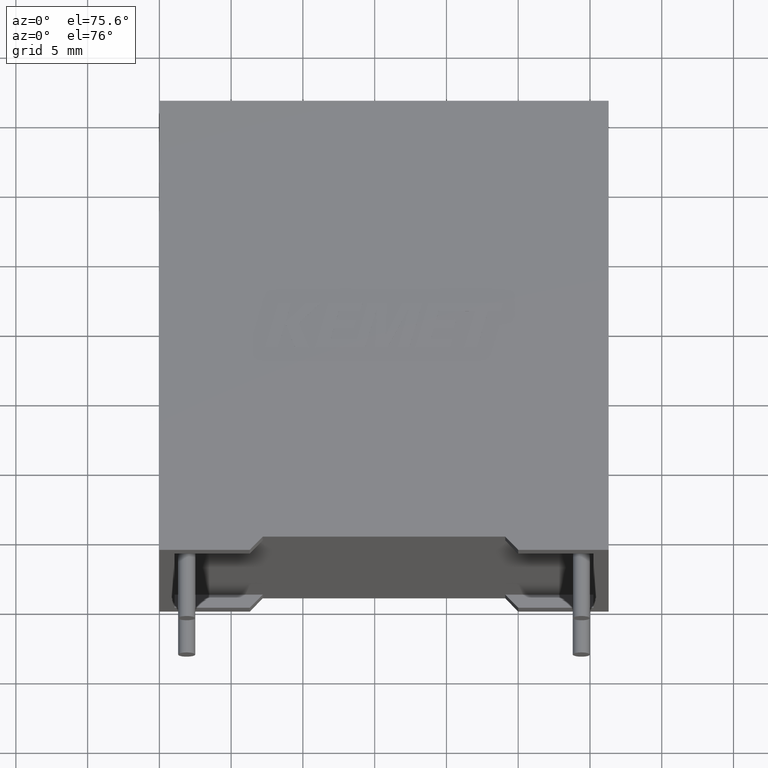
[diagram: clean part render]
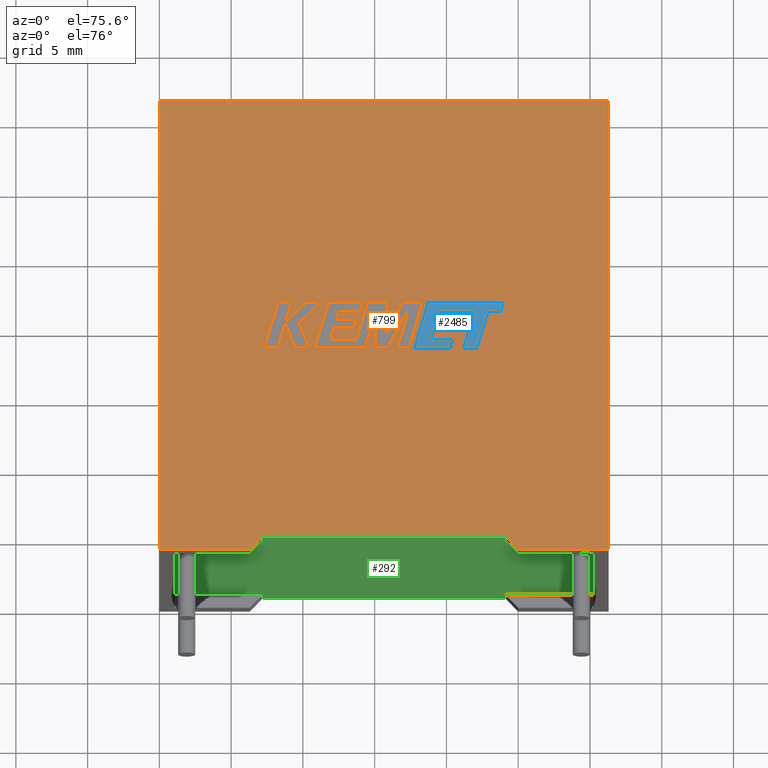
[diagram: same view with three faces highlighted in distinct colors, each labeled with its STEP entity id]
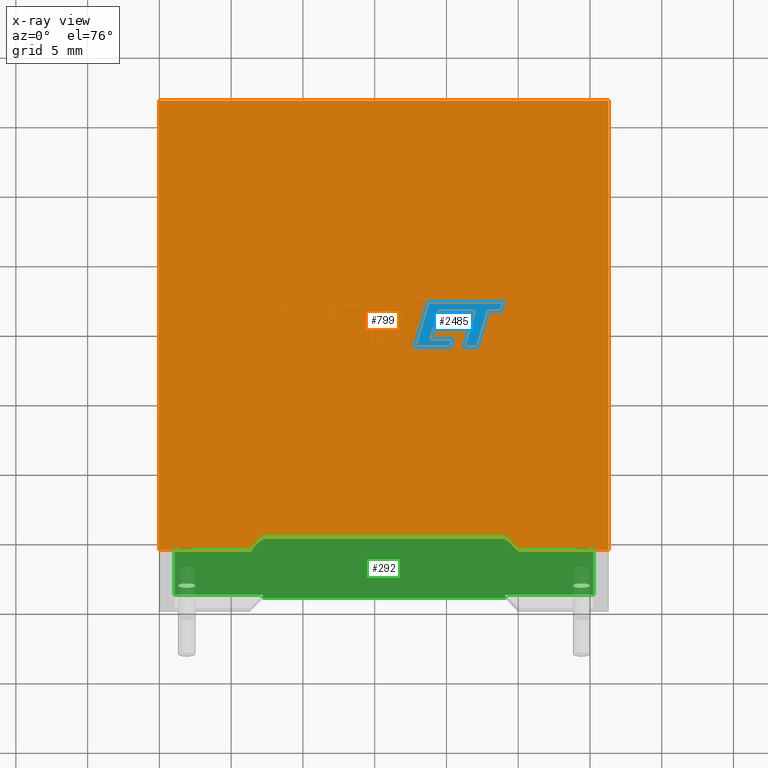
[diagram: x-ray of the same camera — body ghosted, the three highlighted faces saturated]
A machine part, auxiliary view with three faces highlighted in distinct colors.
The next image is the same camera in x-ray (body ghosted, the three faces saturated) — at least one of them is partly hidden behind the body in this view.
Their STEP definitions:

[orange] entity #799 — the highlighted planar face has unit normal (0, 0, -1).
#4 = VERTEX_POINT ( 'NONE', #3016 ) ;
#35 = ORIENTED_EDGE ( 'NONE', *, *, #3061, .F. ) ;
#46 = VECTOR ( 'NONE', #430, 1000.000000000000000 ) ;
#55 = VECTOR ( 'NONE', #1539, 1000.000000000000000 ) ;
#92 = LINE ( 'NONE', #1996, #1920 ) ;
#164 = EDGE_CURVE ( 'NONE', #1749, #1561, #2342, .T. ) ;
#175 = CARTESIAN_POINT ( 'NONE',  ( 31.30000000000000071, 0.000000000000000000, 17.30000000000000071 ) ) ;
#206 = CARTESIAN_POINT ( 'NONE',  ( 0.000000000000000000, 0.000000000000000000, 17.30000000000000071 ) ) ;
#317 = DIRECTION ( 'NONE',  ( 0.000000000000000000, 0.000000000000000000, -1.000000000000000000 ) ) ;
#391 = EDGE_CURVE ( 'NONE', #884, #1222, #2526, .T. ) ;
#430 = DIRECTION ( 'NONE',  ( -0.000000000000000000, -1.000000000000000000, -0.000000000000000000 ) ) ;
#433 = CARTESIAN_POINT ( 'NONE',  ( 6.300000000000000711, 1.543054966925665273E-15, 17.30000000000000071 ) ) ;
#443 = CARTESIAN_POINT ( 'NONE',  ( 0.000000000000000000, 32.29999999999999716, 17.30000000000000071 ) ) ;
#468 = CARTESIAN_POINT ( 'NONE',  ( 24.10000000000000142, 0.9496200000000032393, 17.30000000000000071 ) ) ;
#474 = EDGE_CURVE ( 'NONE', #776, #884, #1594, .T. ) ;
#727 = ORIENTED_EDGE ( 'NONE', *, *, #3017, .F. ) ;
#732 = PLANE ( 'NONE',  #3143 ) ;
#776 = VERTEX_POINT ( 'NONE', #175 ) ;
#799 = ADVANCED_FACE ( 'NONE', ( #1505 ), #732, .F. ) ;
#821 = CARTESIAN_POINT ( 'NONE',  ( 0.000000000000000000, 0.000000000000000000, 17.30000000000000071 ) ) ;
#866 = EDGE_LOOP ( 'NONE', ( #35, #2398, #2657, #2430, #2443, #2317, #2940, #727 ) ) ;
#884 = VERTEX_POINT ( 'NONE', #1276 ) ;
#910 = CARTESIAN_POINT ( 'NONE',  ( 15.65000000000000391, 0.9496200000000043495, 17.30000000000000071 ) ) ;
#942 = LINE ( 'NONE', #206, #46 ) ;
#987 = EDGE_CURVE ( 'NONE', #4, #2376, #1717, .T. ) ;
#1070 = DIRECTION ( 'NONE',  ( 1.000000000000000000, 0.000000000000000000, 0.000000000000000000 ) ) ;
#1078 = DIRECTION ( 'NONE',  ( 0.000000000000000000, 1.000000000000000000, 0.000000000000000000 ) ) ;
#1191 = EDGE_CURVE ( 'NONE', #1222, #1749, #942, .T. ) ;
#1222 = VERTEX_POINT ( 'NONE', #443 ) ;
#1276 = CARTESIAN_POINT ( 'NONE',  ( 31.30000000000000071, 32.29999999999999716, 17.30000000000000071 ) ) ;
#1278 = LINE ( 'NONE', #2034, #55 ) ;
#1356 = CARTESIAN_POINT ( 'NONE',  ( 31.30000000000000071, 0.000000000000000000, 17.30000000000000071 ) ) ;
#1439 = VECTOR ( 'NONE', #2765, 1000.000000000000000 ) ;
#1505 = FACE_OUTER_BOUND ( 'NONE', #866, .T. ) ;
#1539 = DIRECTION ( 'NONE',  ( -0.6878896433354887430, -0.7258152923380535304, 0.000000000000000000 ) ) ;
#1561 = VERTEX_POINT ( 'NONE', #433 ) ;
#1594 = LINE ( 'NONE', #1356, #2469 ) ;
#1632 = DIRECTION ( 'NONE',  ( -1.000000000000000000, -1.283079494065685201E-16, 0.000000000000000000 ) ) ;
#1680 = CARTESIAN_POINT ( 'NONE',  ( 25.00000000000000000, 1.543054966925665273E-15, 17.30000000000000071 ) ) ;
#1717 = LINE ( 'NONE', #468, #2546 ) ;
#1749 = VERTEX_POINT ( 'NONE', #821 ) ;
#1855 = VECTOR ( 'NONE', #1632, 1000.000000000000000 ) ;
#1887 = CARTESIAN_POINT ( 'NONE',  ( 0.000000000000000000, 0.000000000000000000, 17.30000000000000071 ) ) ;
#1920 = VECTOR ( 'NONE', #1070, 1000.000000000000000 ) ;
#1996 = CARTESIAN_POINT ( 'NONE',  ( 0.000000000000000000, 0.000000000000000000, 17.30000000000000071 ) ) ;
#2031 = EDGE_CURVE ( 'NONE', #2376, #776, #92, .T. ) ;
#2034 = CARTESIAN_POINT ( 'NONE',  ( 7.200000000000001066, 0.9496200000000032393, 17.30000000000000071 ) ) ;
#2138 = LINE ( 'NONE', #910, #1855 ) ;
#2213 = DIRECTION ( 'NONE',  ( -1.000000000000000000, 0.000000000000000000, -0.000000000000000000 ) ) ;
#2250 = CARTESIAN_POINT ( 'NONE',  ( 0.000000000000000000, 0.000000000000000000, 17.30000000000000071 ) ) ;
#2271 = VERTEX_POINT ( 'NONE', #2689 ) ;
#2317 = ORIENTED_EDGE ( 'NONE', *, *, #1191, .T. ) ;
#2342 = LINE ( 'NONE', #1887, #2902 ) ;
#2376 = VERTEX_POINT ( 'NONE', #1680 ) ;
#2398 = ORIENTED_EDGE ( 'NONE', *, *, #987, .T. ) ;
#2430 = ORIENTED_EDGE ( 'NONE', *, *, #474, .T. ) ;
#2443 = ORIENTED_EDGE ( 'NONE', *, *, #391, .T. ) ;
#2469 = VECTOR ( 'NONE', #1078, 1000.000000000000000 ) ;
#2526 = LINE ( 'NONE', #2994, #1439 ) ;
#2546 = VECTOR ( 'NONE', #3110, 1000.000000000000000 ) ;
#2608 = DIRECTION ( 'NONE',  ( 1.000000000000000000, 0.000000000000000000, 0.000000000000000000 ) ) ;
#2657 = ORIENTED_EDGE ( 'NONE', *, *, #2031, .T. ) ;
#2689 = CARTESIAN_POINT ( 'NONE',  ( 7.200000000000001066, 0.9496200000000032393, 17.30000000000000071 ) ) ;
#2765 = DIRECTION ( 'NONE',  ( -1.000000000000000000, -0.000000000000000000, -0.000000000000000000 ) ) ;
#2902 = VECTOR ( 'NONE', #2608, 1000.000000000000000 ) ;
#2940 = ORIENTED_EDGE ( 'NONE', *, *, #164, .T. ) ;
#2994 = CARTESIAN_POINT ( 'NONE',  ( 0.000000000000000000, 32.29999999999999716, 17.30000000000000071 ) ) ;
#3016 = CARTESIAN_POINT ( 'NONE',  ( 24.10000000000000142, 0.9496200000000032393, 17.30000000000000071 ) ) ;
#3017 = EDGE_CURVE ( 'NONE', #2271, #1561, #1278, .T. ) ;
#3061 = EDGE_CURVE ( 'NONE', #4, #2271, #2138, .T. ) ;
#3110 = DIRECTION ( 'NONE',  ( 0.6878896433354887430, -0.7258152923380535304, 0.000000000000000000 ) ) ;
#3143 = AXIS2_PLACEMENT_3D ( 'NONE', #2250, #317, #2213 ) ;

[blue] entity #2485 — the highlighted planar face has unit normal (0, 0, 1).
#18 = VERTEX_POINT ( 'NONE', #1532 ) ;
#31 = ORIENTED_EDGE ( 'NONE', *, *, #2266, .T. ) ;
#42 = DIRECTION ( 'NONE',  ( 0.2745159998572473392, 0.9615825319869198973, 0.000000000000000000 ) ) ;
#86 = ORIENTED_EDGE ( 'NONE', *, *, #1375, .T. ) ;
#89 = CARTESIAN_POINT ( 'NONE',  ( 20.25817711236862451, 14.52530999999991046, 17.30499999999999972 ) ) ;
#91 = DIRECTION ( 'NONE',  ( 1.000000000000000000, 0.000000000000000000, 0.000000000000000000 ) ) ;
#97 = VECTOR ( 'NONE', #2005, 1000.000000000000000 ) ;
#106 = AXIS2_PLACEMENT_3D ( 'NONE', #2556, #2538, #2761 ) ;
#162 = VECTOR ( 'NONE', #1273, 1000.000000000000000 ) ;
#176 = ORIENTED_EDGE ( 'NONE', *, *, #2781, .T. ) ;
#187 = EDGE_CURVE ( 'NONE', #18, #1409, #421, .T. ) ;
#194 = VERTEX_POINT ( 'NONE', #2593 ) ;
#221 = EDGE_CURVE ( 'NONE', #1409, #2924, #1903, .T. ) ;
#279 = LINE ( 'NONE', #2232, #2330 ) ;
#282 = CARTESIAN_POINT ( 'NONE',  ( 19.13125819028597263, 15.95531307450896996, 17.30499999999999972 ) ) ;
#287 = LINE ( 'NONE', #2004, #2255 ) ;
#288 = CARTESIAN_POINT ( 'NONE',  ( 17.79592803777410381, 14.52530999999991046, 17.30499999999999972 ) ) ;
#308 = EDGE_CURVE ( 'NONE', #2924, #1832, #1447, .T. ) ;
#320 = FACE_OUTER_BOUND ( 'NONE', #1213, .T. ) ;
#335 = PLANE ( 'NONE',  #106 ) ;
#342 = LINE ( 'NONE', #1251, #2297 ) ;
#348 = LINE ( 'NONE', #2499, #1437 ) ;
#357 = EDGE_CURVE ( 'NONE', #1832, #1955, #287, .T. ) ;
#359 = ORIENTED_EDGE ( 'NONE', *, *, #2930, .T. ) ;
#403 = EDGE_CURVE ( 'NONE', #1157, #1150, #1265, .T. ) ;
#407 = ORIENTED_EDGE ( 'NONE', *, *, #187, .T. ) ;
#417 = CARTESIAN_POINT ( 'NONE',  ( 22.89187593538664345, 17.15503521596052039, 17.30499999999999972 ) ) ;
#421 = LINE ( 'NONE', #861, #2707 ) ;
#499 = ORIENTED_EDGE ( 'NONE', *, *, #2333, .T. ) ;
#511 = DIRECTION ( 'NONE',  ( 0.9999999968487351953, -7.938847107242143349E-05, 0.000000000000000000 ) ) ;
#514 = VECTOR ( 'NONE', #689, 1000.000000000000000 ) ;
#525 = EDGE_CURVE ( 'NONE', #1150, #2913, #2070, .T. ) ;
#570 = DIRECTION ( 'NONE',  ( -0.2763173343569894636, -0.9610664548998928414, 0.000000000000000000 ) ) ;
#594 = CARTESIAN_POINT ( 'NONE',  ( 21.96373645807492636, 17.15503521596862058, 17.30499999999999972 ) ) ;
#616 = VERTEX_POINT ( 'NONE', #89 ) ;
#635 = CARTESIAN_POINT ( 'NONE',  ( 23.78415243502824339, 17.15496437949321873, 17.30499999999999972 ) ) ;
#689 = DIRECTION ( 'NONE',  ( 0.2746918797667528001, 0.9615323037684214702, 0.000000000000000000 ) ) ;
#699 = DIRECTION ( 'NONE',  ( 0.9999960426590096541, -0.002813301676026589131, 0.000000000000000000 ) ) ;
#703 = CARTESIAN_POINT ( 'NONE',  ( 19.30314394546934764, 16.55767622947713136, 17.30499999999999972 ) ) ;
#723 = DIRECTION ( 'NONE',  ( -1.000000000000000000, -9.064081856670373148E-16, 0.000000000000000000 ) ) ;
#737 = DIRECTION ( 'NONE',  ( 0.2793947940814967557, 0.9601763114346021366, 0.000000000000000000 ) ) ;
#758 = ORIENTED_EDGE ( 'NONE', *, *, #3072, .T. ) ;
#762 = VECTOR ( 'NONE', #3120, 1000.000000000000114 ) ;
#779 = CARTESIAN_POINT ( 'NONE',  ( 20.43414547628752942, 15.14545033960687448, 17.30499999999999972 ) ) ;
#785 = ORIENTED_EDGE ( 'NONE', *, *, #525, .T. ) ;
#861 = CARTESIAN_POINT ( 'NONE',  ( 20.70171489641166573, 16.55767622947713136, 17.30499999999999972 ) ) ;
#911 = CARTESIAN_POINT ( 'NONE',  ( 22.13601858303819725, 14.52530999999991046, 17.30499999999999972 ) ) ;
#923 = VECTOR ( 'NONE', #2554, 1000.000000000000114 ) ;
#927 = LINE ( 'NONE', #2334, #514 ) ;
#937 = CARTESIAN_POINT ( 'NONE',  ( 19.47952849765790617, 17.16384453433486357, 17.30499999999999972 ) ) ;
#960 = LINE ( 'NONE', #1751, #3003 ) ;
#977 = ORIENTED_EDGE ( 'NONE', *, *, #308, .T. ) ;
#1041 = EDGE_CURVE ( 'NONE', #1542, #616, #1985, .T. ) ;
#1060 = CARTESIAN_POINT ( 'NONE',  ( 22.89187593538664345, 17.15503521596052039, 17.30499999999999972 ) ) ;
#1101 = EDGE_CURVE ( 'NONE', #1955, #1590, #342, .T. ) ;
#1109 = VECTOR ( 'NONE', #2779, 999.9999999999998863 ) ;
#1150 = VERTEX_POINT ( 'NONE', #1639 ) ;
#1157 = VERTEX_POINT ( 'NONE', #417 ) ;
#1165 = EDGE_CURVE ( 'NONE', #616, #2804, #2877, .T. ) ;
#1204 = CARTESIAN_POINT ( 'NONE',  ( 20.25817711236862451, 14.52530999999991046, 17.30499999999999972 ) ) ;
#1213 = EDGE_LOOP ( 'NONE', ( #977, #2196, #3092, #359, #499, #2735, #785, #1287, #86, #1628, #2146, #176, #1697, #31, #758, #407, #2081 ) ) ;
#1251 = CARTESIAN_POINT ( 'NONE',  ( 21.96373645807492636, 17.15503521596862058, 17.30499999999999972 ) ) ;
#1265 = LINE ( 'NONE', #1060, #1857 ) ;
#1273 = DIRECTION ( 'NONE',  ( -1.000000000000000000, 0.000000000000000000, 0.000000000000000000 ) ) ;
#1287 = ORIENTED_EDGE ( 'NONE', *, *, #2846, .T. ) ;
#1358 = VERTEX_POINT ( 'NONE', #911 ) ;
#1375 = EDGE_CURVE ( 'NONE', #194, #1542, #1399, .T. ) ;
#1399 = LINE ( 'NONE', #3049, #923 ) ;
#1409 = VERTEX_POINT ( 'NONE', #703 ) ;
#1437 = VECTOR ( 'NONE', #91, 1000.000000000000000 ) ;
#1447 = LINE ( 'NONE', #937, #2564 ) ;
#1473 = LINE ( 'NONE', #282, #2221 ) ;
#1530 = VERTEX_POINT ( 'NONE', #2636 ) ;
#1532 = CARTESIAN_POINT ( 'NONE',  ( 20.70171489641166573, 16.55767622947713136, 17.30499999999999972 ) ) ;
#1542 = VERTEX_POINT ( 'NONE', #2102 ) ;
#1590 = VERTEX_POINT ( 'NONE', #2648 ) ;
#1628 = ORIENTED_EDGE ( 'NONE', *, *, #1041, .T. ) ;
#1639 = CARTESIAN_POINT ( 'NONE',  ( 23.78415243502824339, 17.15496437949321873, 17.30499999999999972 ) ) ;
#1673 = VERTEX_POINT ( 'NONE', #1684 ) ;
#1684 = CARTESIAN_POINT ( 'NONE',  ( 18.90005569749589398, 15.14545033960687448, 17.30499999999999972 ) ) ;
#1697 = ORIENTED_EDGE ( 'NONE', *, *, #2010, .T. ) ;
#1751 = CARTESIAN_POINT ( 'NONE',  ( 23.96500748091568056, 17.78428215128295165, 17.30499999999999972 ) ) ;
#1768 = DIRECTION ( 'NONE',  ( 0.9999891854650021505, -0.004650693823667352220, 0.000000000000000000 ) ) ;
#1832 = VERTEX_POINT ( 'NONE', #2806 ) ;
#1856 = DIRECTION ( 'NONE',  ( -1.000000000000000000, 0.000000000000000000, 0.000000000000000000 ) ) ;
#1857 = VECTOR ( 'NONE', #511, 1000.000000000000114 ) ;
#1903 = LINE ( 'NONE', #1936, #3112 ) ;
#1933 = CARTESIAN_POINT ( 'NONE',  ( 19.13125819028597263, 15.95531307450896996, 17.30499999999999972 ) ) ;
#1936 = CARTESIAN_POINT ( 'NONE',  ( 19.30314394546934764, 16.55767622947713136, 17.30499999999999972 ) ) ;
#1955 = VERTEX_POINT ( 'NONE', #594 ) ;
#1985 = LINE ( 'NONE', #288, #97 ) ;
#1993 = LINE ( 'NONE', #2704, #162 ) ;
#2004 = CARTESIAN_POINT ( 'NONE',  ( 20.97297055549159595, 17.15964301466366848, 17.30499999999999972 ) ) ;
#2005 = DIRECTION ( 'NONE',  ( 1.000000000000000000, 0.000000000000000000, 0.000000000000000000 ) ) ;
#2010 = EDGE_CURVE ( 'NONE', #1673, #2388, #279, .T. ) ;
#2070 = LINE ( 'NONE', #635, #1109 ) ;
#2081 = ORIENTED_EDGE ( 'NONE', *, *, #221, .T. ) ;
#2102 = CARTESIAN_POINT ( 'NONE',  ( 17.79592803777410381, 14.52530999999991046, 17.30499999999999972 ) ) ;
#2126 = VECTOR ( 'NONE', #2156, 1000.000000000000114 ) ;
#2146 = ORIENTED_EDGE ( 'NONE', *, *, #1165, .T. ) ;
#2156 = DIRECTION ( 'NONE',  ( 0.2762437428917328130, 0.9610876102172819513, 0.000000000000000000 ) ) ;
#2196 = ORIENTED_EDGE ( 'NONE', *, *, #357, .T. ) ;
#2202 = DIRECTION ( 'NONE',  ( 1.000000000000000000, 0.000000000000000000, 0.000000000000000000 ) ) ;
#2221 = VECTOR ( 'NONE', #2202, 1000.000000000000000 ) ;
#2232 = CARTESIAN_POINT ( 'NONE',  ( 18.90005569749589398, 15.14545033960687448, 17.30499999999999972 ) ) ;
#2251 = CARTESIAN_POINT ( 'NONE',  ( 19.47952849765790617, 17.16384453433486357, 17.30499999999999972 ) ) ;
#2255 = VECTOR ( 'NONE', #1768, 1000.000000000000114 ) ;
#2266 = EDGE_CURVE ( 'NONE', #2388, #1530, #1473, .T. ) ;
#2268 = CARTESIAN_POINT ( 'NONE',  ( 23.96500748091568056, 17.78428215128295165, 17.30499999999999972 ) ) ;
#2297 = VECTOR ( 'NONE', #570, 1000.000000000000114 ) ;
#2330 = VECTOR ( 'NONE', #42, 999.9999999999998863 ) ;
#2333 = EDGE_CURVE ( 'NONE', #1358, #1157, #2708, .T. ) ;
#2334 = CARTESIAN_POINT ( 'NONE',  ( 20.52963095633815271, 15.95531307450896996, 17.30499999999999972 ) ) ;
#2388 = VERTEX_POINT ( 'NONE', #1933 ) ;
#2485 = ADVANCED_FACE ( 'NONE', ( #320 ), #335, .T. ) ;
#2499 = CARTESIAN_POINT ( 'NONE',  ( 21.20766110234573176, 14.52530999999991046, 17.30499999999999972 ) ) ;
#2538 = DIRECTION ( 'NONE',  ( 0.000000000000000000, 0.000000000000000000, 1.000000000000000000 ) ) ;
#2554 = DIRECTION ( 'NONE',  ( -0.2764273280489751294, -0.9610348236706639513, 0.000000000000000000 ) ) ;
#2556 = CARTESIAN_POINT ( 'NONE',  ( -0.1104640680447332712, -1.802930519441395596, 17.30499999999999972 ) ) ;
#2564 = VECTOR ( 'NONE', #699, 999.9999999999998863 ) ;
#2593 = CARTESIAN_POINT ( 'NONE',  ( 18.73332275207210174, 17.78428215128295165, 17.30499999999999972 ) ) ;
#2636 = CARTESIAN_POINT ( 'NONE',  ( 20.52963095633815271, 15.95531307450896996, 17.30499999999999972 ) ) ;
#2648 = CARTESIAN_POINT ( 'NONE',  ( 21.20766110234573176, 14.52530999999991046, 17.30499999999999972 ) ) ;
#2704 = CARTESIAN_POINT ( 'NONE',  ( 20.43414547628752942, 15.14545033960687448, 17.30499999999999972 ) ) ;
#2707 = VECTOR ( 'NONE', #1856, 1000.000000000000000 ) ;
#2708 = LINE ( 'NONE', #3119, #2126 ) ;
#2735 = ORIENTED_EDGE ( 'NONE', *, *, #403, .T. ) ;
#2761 = DIRECTION ( 'NONE',  ( 1.000000000000000000, 0.000000000000000000, 0.000000000000000000 ) ) ;
#2779 = DIRECTION ( 'NONE',  ( 0.2762033010288772461, 0.9610992334305296092, 0.000000000000000000 ) ) ;
#2781 = EDGE_CURVE ( 'NONE', #2804, #1673, #1993, .T. ) ;
#2804 = VERTEX_POINT ( 'NONE', #779 ) ;
#2806 = CARTESIAN_POINT ( 'NONE',  ( 20.97297055549159595, 17.15964301466366848, 17.30499999999999972 ) ) ;
#2846 = EDGE_CURVE ( 'NONE', #2913, #194, #960, .T. ) ;
#2877 = LINE ( 'NONE', #1204, #762 ) ;
#2913 = VERTEX_POINT ( 'NONE', #2268 ) ;
#2924 = VERTEX_POINT ( 'NONE', #2251 ) ;
#2930 = EDGE_CURVE ( 'NONE', #1590, #1358, #348, .T. ) ;
#3003 = VECTOR ( 'NONE', #723, 1000.000000000000000 ) ;
#3049 = CARTESIAN_POINT ( 'NONE',  ( 18.73332275207210174, 17.78428215128295165, 17.30499999999999972 ) ) ;
#3072 = EDGE_CURVE ( 'NONE', #1530, #18, #927, .T. ) ;
#3092 = ORIENTED_EDGE ( 'NONE', *, *, #1101, .T. ) ;
#3112 = VECTOR ( 'NONE', #737, 1000.000000000000114 ) ;
#3119 = CARTESIAN_POINT ( 'NONE',  ( 22.13601858303819725, 14.52530999999991046, 17.30499999999999972 ) ) ;
#3120 = DIRECTION ( 'NONE',  ( 0.2729786930695448643, 0.9620200793798656669, 0.000000000000000000 ) ) ;

[green] entity #292 — the highlighted planar face has unit normal (0, -1, 0).
#4 = VERTEX_POINT ( 'NONE', #3016 ) ;
#27 = CARTESIAN_POINT ( 'NONE',  ( 29.40000000000000213, 0.9496199999999999086, 3.550000000000001155 ) ) ;
#43 = DIRECTION ( 'NONE',  ( 0.000000000000000000, 0.000000000000000000, -1.000000000000000000 ) ) ;
#63 = EDGE_CURVE ( 'NONE', #2038, #3053, #2566, .T. ) ;
#81 = AXIS2_PLACEMENT_3D ( 'NONE', #2119, #1654, #1391 ) ;
#84 = EDGE_LOOP ( 'NONE', ( #2243, #754 ) ) ;
#93 = CARTESIAN_POINT ( 'NONE',  ( 24.10000000000000142, 0.9496200000000032393, 16.23656899999999936 ) ) ;
#94 = AXIS2_PLACEMENT_3D ( 'NONE', #27, #1053, #505 ) ;
#100 = DIRECTION ( 'NONE',  ( 0.000000000000000000, 0.000000000000000000, -1.000000000000000000 ) ) ;
#150 = DIRECTION ( 'NONE',  ( 0.000000000000000000, 0.000000000000000000, -1.000000000000000000 ) ) ;
#152 = DIRECTION ( 'NONE',  ( 1.000000000000000000, 0.000000000000000000, 0.000000000000000000 ) ) ;
#157 = DIRECTION ( 'NONE',  ( 0.000000000000000000, 0.000000000000000000, -1.000000000000000000 ) ) ;
#180 = VECTOR ( 'NONE', #1376, 1000.000000000000000 ) ;
#191 = DIRECTION ( 'NONE',  ( -0.000000000000000000, -0.000000000000000000, 1.000000000000000000 ) ) ;
#192 = EDGE_CURVE ( 'NONE', #1570, #2038, #2814, .T. ) ;
#195 = PLANE ( 'NONE',  #1647 ) ;
#197 = VECTOR ( 'NONE', #2705, 1000.000000000000000 ) ;
#204 = CIRCLE ( 'NONE', #1904, 0.5999999999999998668 ) ;
#224 = FACE_BOUND ( 'NONE', #84, .T. ) ;
#239 = FACE_OUTER_BOUND ( 'NONE', #810, .T. ) ;
#254 = DIRECTION ( 'NONE',  ( 0.000000000000000000, -1.000000000000000000, 0.000000000000000000 ) ) ;
#255 = VERTEX_POINT ( 'NONE', #1700 ) ;
#262 = VERTEX_POINT ( 'NONE', #711 ) ;
#266 = VERTEX_POINT ( 'NONE', #2150 ) ;
#292 = ADVANCED_FACE ( 'NONE', ( #224, #239, #685, #2651, #1952 ), #195, .T. ) ;
#294 = LINE ( 'NONE', #832, #1122 ) ;
#301 = EDGE_LOOP ( 'NONE', ( #3113, #2008 ) ) ;
#334 = CIRCLE ( 'NONE', #998, 0.5999999999999998668 ) ;
#383 = CIRCLE ( 'NONE', #2278, 0.5999999999999998668 ) ;
#392 = DIRECTION ( 'NONE',  ( 0.000000000000000000, -1.000000000000000000, 0.000000000000000000 ) ) ;
#418 = VERTEX_POINT ( 'NONE', #2222 ) ;
#423 = VERTEX_POINT ( 'NONE', #2747 ) ;
#438 = CARTESIAN_POINT ( 'NONE',  ( 7.200000000000001066, 0.9496200000000032393, 16.23656899999999936 ) ) ;
#476 = LINE ( 'NONE', #2424, #3131 ) ;
#505 = DIRECTION ( 'NONE',  ( 0.000000000000000000, 0.000000000000000000, 1.000000000000000000 ) ) ;
#523 = CARTESIAN_POINT ( 'NONE',  ( 7.200000000000001066, 0.9496200000000032393, 0.000000000000000000 ) ) ;
#571 = VERTEX_POINT ( 'NONE', #2784 ) ;
#588 = VERTEX_POINT ( 'NONE', #1067 ) ;
#626 = EDGE_CURVE ( 'NONE', #2431, #4, #294, .T. ) ;
#651 = EDGE_CURVE ( 'NONE', #3053, #2585, #1034, .T. ) ;
#665 = ORIENTED_EDGE ( 'NONE', *, *, #192, .T. ) ;
#683 = ORIENTED_EDGE ( 'NONE', *, *, #651, .T. ) ;
#685 = FACE_BOUND ( 'NONE', #2929, .T. ) ;
#711 = CARTESIAN_POINT ( 'NONE',  ( 1.900000000000000577, 0.9496200000000000196, 4.150000000000001243 ) ) ;
#754 = ORIENTED_EDGE ( 'NONE', *, *, #1379, .F. ) ;
#777 = EDGE_CURVE ( 'NONE', #913, #571, #2615, .T. ) ;
#783 = CARTESIAN_POINT ( 'NONE',  ( 24.10000000000000142, 0.9496200000000032393, 1.063431000000000015 ) ) ;
#810 = EDGE_LOOP ( 'NONE', ( #665, #1468, #683, #1938, #2484, #2512, #2996, #2492, #3041, #949, #917, #2503 ) ) ;
#826 = VERTEX_POINT ( 'NONE', #2920 ) ;
#832 = CARTESIAN_POINT ( 'NONE',  ( 24.10000000000000142, 0.9496200000000032393, 0.000000000000000000 ) ) ;
#833 = CARTESIAN_POINT ( 'NONE',  ( 1.900000000000000577, 0.9496199999999999086, 14.34999999999999787 ) ) ;
#843 = EDGE_CURVE ( 'NONE', #826, #266, #1635, .T. ) ;
#853 = CARTESIAN_POINT ( 'NONE',  ( 1.900000000000000577, 0.9496199999999999086, 13.14999999999999858 ) ) ;
#855 = CIRCLE ( 'NONE', #81, 0.5999999999999998668 ) ;
#889 = CARTESIAN_POINT ( 'NONE',  ( 30.23656900000000292, 0.9496199999999999086, 16.23656899999999936 ) ) ;
#901 = EDGE_CURVE ( 'NONE', #3141, #255, #1228, .T. ) ;
#907 = CARTESIAN_POINT ( 'NONE',  ( 1.063431000000000015, 0.9496199999999999086, 1.063431000000000015 ) ) ;
#910 = CARTESIAN_POINT ( 'NONE',  ( 15.65000000000000391, 0.9496200000000043495, 17.30000000000000071 ) ) ;
#913 = VERTEX_POINT ( 'NONE', #523 ) ;
#917 = ORIENTED_EDGE ( 'NONE', *, *, #777, .F. ) ;
#929 = CIRCLE ( 'NONE', #1798, 0.5999999999999998668 ) ;
#949 = ORIENTED_EDGE ( 'NONE', *, *, #1946, .T. ) ;
#998 = AXIS2_PLACEMENT_3D ( 'NONE', #1196, #2576, #150 ) ;
#1034 = LINE ( 'NONE', #3000, #1583 ) ;
#1044 = LINE ( 'NONE', #2024, #1072 ) ;
#1048 = CIRCLE ( 'NONE', #2274, 0.5999999999999998668 ) ;
#1053 = DIRECTION ( 'NONE',  ( 0.000000000000000000, -1.000000000000000000, 0.000000000000000000 ) ) ;
#1066 = VECTOR ( 'NONE', #191, 1000.000000000000000 ) ;
#1067 = CARTESIAN_POINT ( 'NONE',  ( 1.063431000000000015, 0.9496199999999999086, 1.063431000000000015 ) ) ;
#1072 = VECTOR ( 'NONE', #100, 1000.000000000000000 ) ;
#1117 = EDGE_CURVE ( 'NONE', #255, #588, #1044, .T. ) ;
#1122 = VECTOR ( 'NONE', #2478, 1000.000000000000000 ) ;
#1131 = CARTESIAN_POINT ( 'NONE',  ( 24.10000000000000142, 0.9496200000000032393, 0.000000000000000000 ) ) ;
#1139 = CARTESIAN_POINT ( 'NONE',  ( 29.40000000000000213, 0.9496200000000000196, 13.74999999999999822 ) ) ;
#1151 = CARTESIAN_POINT ( 'NONE',  ( 1.900000000000000577, 0.9496199999999999086, 13.74999999999999822 ) ) ;
#1179 = LINE ( 'NONE', #889, #2225 ) ;
#1196 = CARTESIAN_POINT ( 'NONE',  ( 1.900000000000000577, 0.9496199999999999086, 13.74999999999999822 ) ) ;
#1215 = DIRECTION ( 'NONE',  ( -0.000000000000000000, -0.000000000000000000, 1.000000000000000000 ) ) ;
#1228 = LINE ( 'NONE', #1745, #197 ) ;
#1236 = DIRECTION ( 'NONE',  ( 0.000000000000000000, -0.000000000000000000, -1.000000000000000000 ) ) ;
#1349 = DIRECTION ( 'NONE',  ( 0.000000000000000000, 0.000000000000000000, -1.000000000000000000 ) ) ;
#1364 = CARTESIAN_POINT ( 'NONE',  ( 30.23656900000000292, 0.9496199999999999086, 1.063431000000000015 ) ) ;
#1376 = DIRECTION ( 'NONE',  ( -1.000000000000000000, -1.283079494065685201E-16, 0.000000000000000000 ) ) ;
#1379 = EDGE_CURVE ( 'NONE', #1722, #3037, #2145, .T. ) ;
#1391 = DIRECTION ( 'NONE',  ( 0.000000000000000000, 0.000000000000000000, -1.000000000000000000 ) ) ;
#1415 = ORIENTED_EDGE ( 'NONE', *, *, #2037, .F. ) ;
#1459 = DIRECTION ( 'NONE',  ( 0.000000000000000000, -1.000000000000000000, 0.000000000000000000 ) ) ;
#1468 = ORIENTED_EDGE ( 'NONE', *, *, #63, .T. ) ;
#1477 = CARTESIAN_POINT ( 'NONE',  ( 0.000000000000000000, 0.9496199999999999086, 0.000000000000000000 ) ) ;
#1495 = VECTOR ( 'NONE', #2104, 1000.000000000000000 ) ;
#1506 = LINE ( 'NONE', #2269, #2727 ) ;
#1523 = EDGE_CURVE ( 'NONE', #2585, #2431, #1179, .T. ) ;
#1527 = EDGE_CURVE ( 'NONE', #262, #1775, #855, .T. ) ;
#1534 = EDGE_CURVE ( 'NONE', #1570, #913, #2620, .T. ) ;
#1570 = VERTEX_POINT ( 'NONE', #2592 ) ;
#1583 = VECTOR ( 'NONE', #1808, 1000.000000000000000 ) ;
#1586 = EDGE_CURVE ( 'NONE', #3037, #1722, #334, .T. ) ;
#1587 = DIRECTION ( 'NONE',  ( 0.000000000000000000, -1.000000000000000000, 0.000000000000000000 ) ) ;
#1632 = DIRECTION ( 'NONE',  ( -1.000000000000000000, -1.283079494065685201E-16, 0.000000000000000000 ) ) ;
#1635 = CIRCLE ( 'NONE', #94, 0.5999999999999998668 ) ;
#1647 = AXIS2_PLACEMENT_3D ( 'NONE', #1477, #254, #1236 ) ;
#1654 = DIRECTION ( 'NONE',  ( 0.000000000000000000, -1.000000000000000000, 0.000000000000000000 ) ) ;
#1686 = EDGE_CURVE ( 'NONE', #266, #826, #1048, .T. ) ;
#1700 = CARTESIAN_POINT ( 'NONE',  ( 1.063431000000000015, 0.9496199999999999086, 16.23656899999999936 ) ) ;
#1722 = VERTEX_POINT ( 'NONE', #853 ) ;
#1726 = ORIENTED_EDGE ( 'NONE', *, *, #1527, .F. ) ;
#1745 = CARTESIAN_POINT ( 'NONE',  ( 30.23656900000000292, 0.9496199999999999086, 16.23656899999999936 ) ) ;
#1775 = VERTEX_POINT ( 'NONE', #1833 ) ;
#1798 = AXIS2_PLACEMENT_3D ( 'NONE', #1139, #2818, #1349 ) ;
#1808 = DIRECTION ( 'NONE',  ( 0.000000000000000000, 0.000000000000000000, 1.000000000000000000 ) ) ;
#1811 = DIRECTION ( 'NONE',  ( 0.000000000000000000, 0.000000000000000000, -1.000000000000000000 ) ) ;
#1833 = CARTESIAN_POINT ( 'NONE',  ( 1.900000000000000577, 0.9496200000000000196, 2.950000000000001066 ) ) ;
#1855 = VECTOR ( 'NONE', #1632, 1000.000000000000000 ) ;
#1904 = AXIS2_PLACEMENT_3D ( 'NONE', #2233, #1587, #43 ) ;
#1934 = ORIENTED_EDGE ( 'NONE', *, *, #843, .F. ) ;
#1938 = ORIENTED_EDGE ( 'NONE', *, *, #1523, .T. ) ;
#1946 = EDGE_CURVE ( 'NONE', #588, #571, #1506, .T. ) ;
#1952 = FACE_BOUND ( 'NONE', #2458, .T. ) ;
#2008 = ORIENTED_EDGE ( 'NONE', *, *, #2565, .F. ) ;
#2024 = CARTESIAN_POINT ( 'NONE',  ( 1.063431000000000015, 0.9496199999999999086, 16.23656899999999936 ) ) ;
#2037 = EDGE_CURVE ( 'NONE', #1775, #262, #383, .T. ) ;
#2038 = VERTEX_POINT ( 'NONE', #783 ) ;
#2049 = CARTESIAN_POINT ( 'NONE',  ( 1.900000000000000577, 0.9496200000000000196, 3.550000000000001155 ) ) ;
#2104 = DIRECTION ( 'NONE',  ( -0.000000000000000000, -0.000000000000000000, 1.000000000000000000 ) ) ;
#2119 = CARTESIAN_POINT ( 'NONE',  ( 1.900000000000000577, 0.9496200000000000196, 3.550000000000001155 ) ) ;
#2138 = LINE ( 'NONE', #910, #1855 ) ;
#2145 = CIRCLE ( 'NONE', #3097, 0.5999999999999998668 ) ;
#2150 = CARTESIAN_POINT ( 'NONE',  ( 29.40000000000000213, 0.9496199999999999086, 4.150000000000001243 ) ) ;
#2175 = CARTESIAN_POINT ( 'NONE',  ( 29.40000000000000213, 0.9496199999999999086, 3.550000000000001155 ) ) ;
#2222 = CARTESIAN_POINT ( 'NONE',  ( 29.40000000000000213, 0.9496200000000000196, 13.14999999999999858 ) ) ;
#2225 = VECTOR ( 'NONE', #3122, 1000.000000000000000 ) ;
#2233 = CARTESIAN_POINT ( 'NONE',  ( 29.40000000000000213, 0.9496200000000000196, 13.74999999999999822 ) ) ;
#2243 = ORIENTED_EDGE ( 'NONE', *, *, #1586, .F. ) ;
#2269 = CARTESIAN_POINT ( 'NONE',  ( 1.063431000000000015, 0.9496199999999999086, 1.063431000000000015 ) ) ;
#2271 = VERTEX_POINT ( 'NONE', #2689 ) ;
#2274 = AXIS2_PLACEMENT_3D ( 'NONE', #2175, #1459, #2506 ) ;
#2278 = AXIS2_PLACEMENT_3D ( 'NONE', #2049, #3002, #1811 ) ;
#2298 = ORIENTED_EDGE ( 'NONE', *, *, #1686, .F. ) ;
#2311 = VECTOR ( 'NONE', #152, 1000.000000000000000 ) ;
#2381 = CARTESIAN_POINT ( 'NONE',  ( 7.200000000000001066, 0.9496200000000032393, 0.000000000000000000 ) ) ;
#2406 = EDGE_CURVE ( 'NONE', #3141, #2271, #476, .T. ) ;
#2424 = CARTESIAN_POINT ( 'NONE',  ( 7.200000000000001066, 0.9496200000000032393, 0.000000000000000000 ) ) ;
#2431 = VERTEX_POINT ( 'NONE', #93 ) ;
#2458 = EDGE_LOOP ( 'NONE', ( #2298, #1934 ) ) ;
#2463 = DIRECTION ( 'NONE',  ( 1.000000000000000000, 0.000000000000000000, 0.000000000000000000 ) ) ;
#2478 = DIRECTION ( 'NONE',  ( -0.000000000000000000, -0.000000000000000000, 1.000000000000000000 ) ) ;
#2484 = ORIENTED_EDGE ( 'NONE', *, *, #626, .T. ) ;
#2492 = ORIENTED_EDGE ( 'NONE', *, *, #901, .T. ) ;
#2503 = ORIENTED_EDGE ( 'NONE', *, *, #1534, .F. ) ;
#2506 = DIRECTION ( 'NONE',  ( 0.000000000000000000, 0.000000000000000000, 1.000000000000000000 ) ) ;
#2512 = ORIENTED_EDGE ( 'NONE', *, *, #3061, .T. ) ;
#2565 = EDGE_CURVE ( 'NONE', #418, #423, #204, .T. ) ;
#2566 = LINE ( 'NONE', #907, #2311 ) ;
#2576 = DIRECTION ( 'NONE',  ( 0.000000000000000000, -1.000000000000000000, 0.000000000000000000 ) ) ;
#2585 = VERTEX_POINT ( 'NONE', #2973 ) ;
#2592 = CARTESIAN_POINT ( 'NONE',  ( 24.10000000000000142, 0.9496200000000032393, 0.000000000000000000 ) ) ;
#2615 = LINE ( 'NONE', #2381, #1066 ) ;
#2616 = EDGE_CURVE ( 'NONE', #423, #418, #929, .T. ) ;
#2620 = LINE ( 'NONE', #3086, #180 ) ;
#2651 = FACE_BOUND ( 'NONE', #301, .T. ) ;
#2689 = CARTESIAN_POINT ( 'NONE',  ( 7.200000000000001066, 0.9496200000000032393, 17.30000000000000071 ) ) ;
#2705 = DIRECTION ( 'NONE',  ( -1.000000000000000000, 0.000000000000000000, 0.000000000000000000 ) ) ;
#2727 = VECTOR ( 'NONE', #2463, 1000.000000000000000 ) ;
#2747 = CARTESIAN_POINT ( 'NONE',  ( 29.40000000000000213, 0.9496200000000000196, 14.34999999999999787 ) ) ;
#2784 = CARTESIAN_POINT ( 'NONE',  ( 7.200000000000001066, 0.9496200000000032393, 1.063431000000000015 ) ) ;
#2814 = LINE ( 'NONE', #1131, #1495 ) ;
#2818 = DIRECTION ( 'NONE',  ( 0.000000000000000000, -1.000000000000000000, 0.000000000000000000 ) ) ;
#2920 = CARTESIAN_POINT ( 'NONE',  ( 29.40000000000000213, 0.9496199999999999086, 2.950000000000001066 ) ) ;
#2929 = EDGE_LOOP ( 'NONE', ( #1726, #1415 ) ) ;
#2973 = CARTESIAN_POINT ( 'NONE',  ( 30.23656900000000292, 0.9496199999999999086, 16.23656899999999936 ) ) ;
#2996 = ORIENTED_EDGE ( 'NONE', *, *, #2406, .F. ) ;
#3000 = CARTESIAN_POINT ( 'NONE',  ( 30.23656900000000292, 0.9496199999999999086, 1.063431000000000015 ) ) ;
#3002 = DIRECTION ( 'NONE',  ( 0.000000000000000000, -1.000000000000000000, 0.000000000000000000 ) ) ;
#3016 = CARTESIAN_POINT ( 'NONE',  ( 24.10000000000000142, 0.9496200000000032393, 17.30000000000000071 ) ) ;
#3037 = VERTEX_POINT ( 'NONE', #833 ) ;
#3041 = ORIENTED_EDGE ( 'NONE', *, *, #1117, .T. ) ;
#3053 = VERTEX_POINT ( 'NONE', #1364 ) ;
#3061 = EDGE_CURVE ( 'NONE', #4, #2271, #2138, .T. ) ;
#3086 = CARTESIAN_POINT ( 'NONE',  ( 15.65000000000000391, 0.9496200000000043495, 0.000000000000000000 ) ) ;
#3097 = AXIS2_PLACEMENT_3D ( 'NONE', #1151, #392, #157 ) ;
#3113 = ORIENTED_EDGE ( 'NONE', *, *, #2616, .F. ) ;
#3122 = DIRECTION ( 'NONE',  ( -1.000000000000000000, 0.000000000000000000, 0.000000000000000000 ) ) ;
#3131 = VECTOR ( 'NONE', #1215, 1000.000000000000000 ) ;
#3141 = VERTEX_POINT ( 'NONE', #438 ) ;